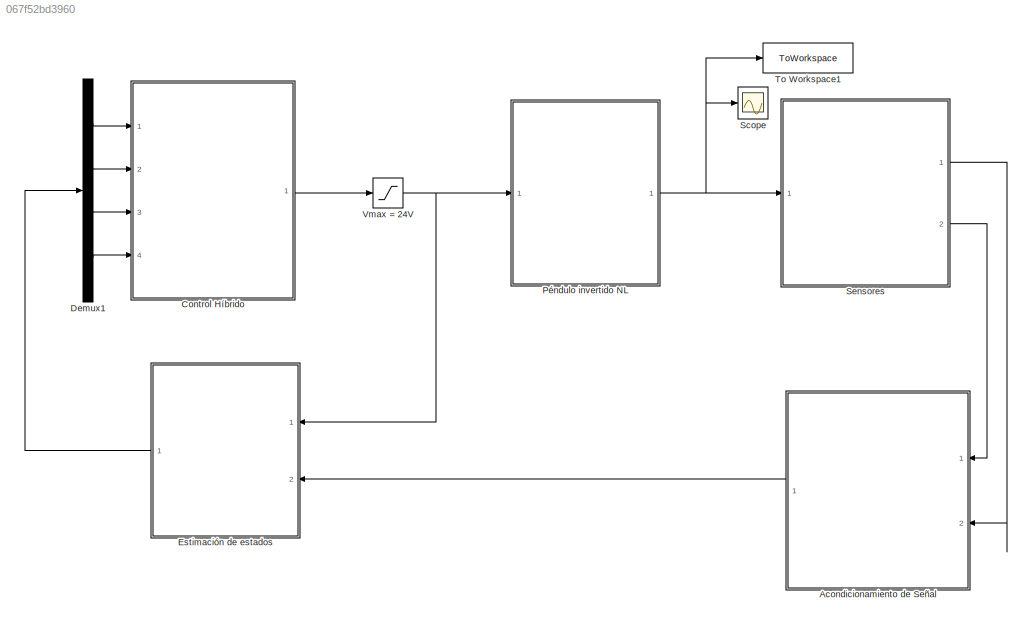
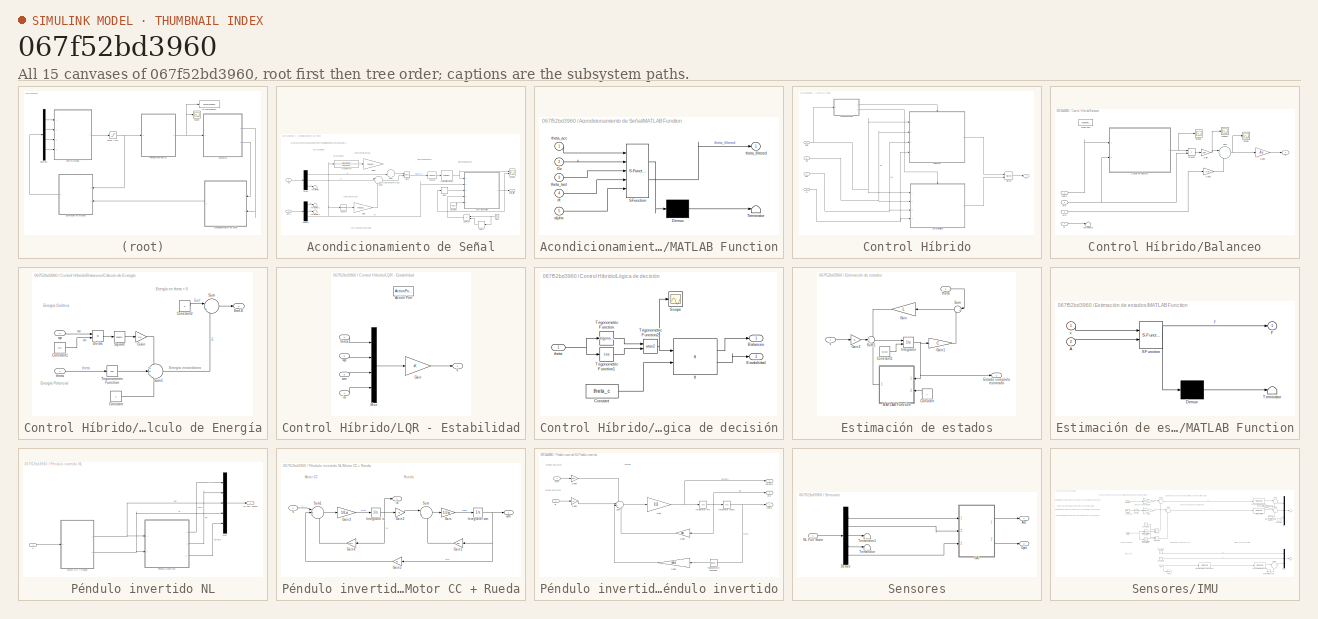
[diagram: thumbnail index - all 15 canvases of the model, root first then tree order]
MODEL slx_067f52bd3960
KIND model
CONFIG AbsTol = auto
CONFIG EnableMultiTasking = off
CONFIG FixedStep = auto
CONFIG MaxStep = auto
CONFIG MinStep = auto
CONFIG RelTol = 1e-3
CONFIG SampleTimeConstraint = Unconstrained
CONFIG SolverName = VariableStepAuto
CONFIG StartTime = 0.0
CONFIG StopTime = 10.0
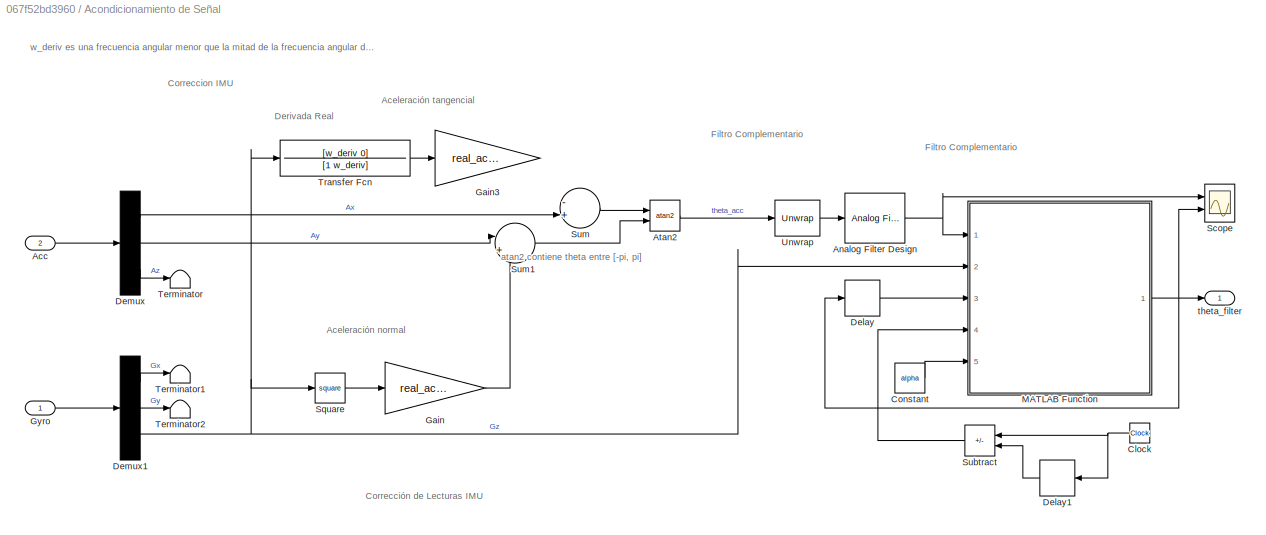
BLOCK [SubSystem] Acondicionamiento de Señal
  Ports = [2, 1]
  RequestExecContextInheritance = off
BLOCK [Inport] Acondicionamiento de Señal/Acc
  Port = 2
BLOCK [Reference] Acondicionamiento de Señal/Analog Filter Design  REF=dsparch4/Analog
Filter Design
  Ports = [1, 1]
  SourceBlock = dsparch4/Analog\nFilter Design
  SourceProductBaseCode = DS
  SourceType = Analog Filter Design
BLOCK [Trigonometry] Acondicionamiento de Señal/Atan2
  Operator = atan2
  Ports = [2, 1]
BLOCK [Clock] Acondicionamiento de Señal/Clock
BLOCK [Constant] Acondicionamiento de Señal/Constant
  Value = alpha
BLOCK [Delay] Acondicionamiento de Señal/Delay
  DelayLength = 1
  InitialCondition = x0_sw(1)
  InputPortMap = u0
  NameLocation = top
  Ports = [1, 1]
  SampleTime = 1/fs_IMU
BLOCK [Delay] Acondicionamiento de Señal/Delay1
  DelayLength = 1
  InitialCondition = 0
  InputPortMap = u0
  NameLocation = top
  Ports = [1, 1]
  SampleTime = 1/fs_IMU
BLOCK [Demux] Acondicionamiento de Señal/Demux
  Outputs = 3
  Ports = [1, 3]
BLOCK [Demux] Acondicionamiento de Señal/Demux1
  Outputs = 3
  Ports = [1, 3]
BLOCK [Gain] Acondicionamiento de Señal/Gain
  Gain = real_acc_height
BLOCK [Gain] Acondicionamiento de Señal/Gain3
  Gain = real_acc_height
BLOCK [Inport] Acondicionamiento de Señal/Gyro
BLOCK [SubSystem] Acondicionamiento de Señal/MATLAB Function
  ErrorFcn = Stateflow.Translate.translate
  PermitHierarchicalResolution = ExplicitOnly
  Ports = [5, 1]
  RequestExecContextInheritance = off
  SFBlockType = MATLAB Function
  TreatAsAtomicUnit = on
BLOCK [Demux] Acondicionamiento de Señal/MATLAB Function/ Demux 
  Outputs = 1
  Ports = [1, 1]
BLOCK [S-Function] Acondicionamiento de Señal/MATLAB Function/ SFunction 
  EnableBusSupport = on
  FunctionName = sf_sfun
  PortCounts = [5 2]
  Ports = [5, 2]
  SFcnIsStateOwnerBlock = off
  SFunctionDeploymentMode = off
  Tag = Stateflow S-Function 2
BLOCK [Terminator] Acondicionamiento de Señal/MATLAB Function/ Terminator 
BLOCK [Inport] Acondicionamiento de Señal/MATLAB Function/Gz
  Port = 2
BLOCK [Inport] Acondicionamiento de Señal/MATLAB Function/alpha
  Port = 5
BLOCK [Inport] Acondicionamiento de Señal/MATLAB Function/dt
  Port = 4
BLOCK [Inport] Acondicionamiento de Señal/MATLAB Function/theta_acc
BLOCK [Outport] Acondicionamiento de Señal/MATLAB Function/theta_filtered
BLOCK [Inport] Acondicionamiento de Señal/MATLAB Function/theta_last
  Port = 3
BLOCK [Scope] Acondicionamiento de Señal/Scope
  Floating = off
  NumInputPorts = 2
  Ports = [2]
  ScopeSpecificationString = Simulink.scopes.TimeScopeBlockCfg('CurrentConfiguration', extmgr.ConfigurationSet(extmgr.Configuration('Core','General UI',true),extmgr.Configuration('Core','Source UI',true),extmgr.Configuration('Sources','WiredSimulink',true,'DataLoggingVariableName','ScopeData1'),extmgr.Configuration('Visuals','Time Domain',true,'SerializedDisplays',{struct('MinYLimReal','-0.30446','MaxYLimReal','0.38542','YLab...<+1520ch>
BLOCK [Math] Acondicionamiento de Señal/Square
  Operator = square
  Ports = [1, 1]
BLOCK [Sum] Acondicionamiento de Señal/Subtract
  IconShape = rectangular
  Inputs = +-
  Ports = [2, 1]
BLOCK [Sum] Acondicionamiento de Señal/Sum
  Inputs = -+|
  Ports = [2, 1]
BLOCK [Sum] Acondicionamiento de Señal/Sum1
  Inputs = |+-
  Ports = [2, 1]
BLOCK [Terminator] Acondicionamiento de Señal/Terminator
BLOCK [Terminator] Acondicionamiento de Señal/Terminator1
BLOCK [Terminator] Acondicionamiento de Señal/Terminator2
BLOCK [TransferFcn] Acondicionamiento de Señal/Transfer Fcn
  Denominator = [1 w_deriv]
  Numerator = [w_deriv 0]
BLOCK [Reference] Acondicionamiento de Señal/Unwrap  REF=dspsigops/Unwrap
  Ports = [1, 1]
  SourceBlock = dspsigops/Unwrap
  SourceProductBaseCode = DS
  SourceType = Unwrap
  UserDataPersistent = on
BLOCK [Outport] Acondicionamiento de Señal/theta_filter
BLOCK [SubSystem] Control Híbrido
  Ports = [4, 1]
  RequestExecContextInheritance = off
BLOCK [SubSystem] Control Híbrido/Balanceo
  Ports = [4, 1, 0, 0, 0, 0, 0, 1]
  RequestExecContextInheritance = off
BLOCK [ActionPort] Control Híbrido/Balanceo/Action Port
  ActionPortLabel = if(u1 > u2 | u1 < -u2)
BLOCK [SubSystem] Control Híbrido/Balanceo/Cálculo de Energía
  Ports = [2, 1]
  RequestExecContextInheritance = off
BLOCK [Constant] Control Híbrido/Balanceo/Cálculo de Energía/Constant
BLOCK [Constant] Control Híbrido/Balanceo/Cálculo de Energía/Constant1
  Value = wn
BLOCK [Constant] Control Híbrido/Balanceo/Cálculo de Energía/Constant2
  Value = 2
BLOCK [Product] Control Híbrido/Balanceo/Cálculo de Energía/Divide
  Inputs = */
  Ports = [2, 1]
BLOCK [Outport] Control Híbrido/Balanceo/Cálculo de Energía/Eref-E
BLOCK [Gain] Control Híbrido/Balanceo/Cálculo de Energía/Gain
  Gain = 1/2
BLOCK [Math] Control Híbrido/Balanceo/Cálculo de Energía/Square
  Operator = square
  Ports = [1, 1]
BLOCK [Sum] Control Híbrido/Balanceo/Cálculo de Energía/Sum
  Inputs = |+-
  Ports = [2, 1]
BLOCK [Sum] Control Híbrido/Balanceo/Cálculo de Energía/Sum1
  Inputs = +++
  Ports = [3, 1]
BLOCK [Trigonometry] Control Híbrido/Balanceo/Cálculo de Energía/Trigonometric Function
  Operator = cos
  Ports = [1, 1]
BLOCK [Inport] Control Híbrido/Balanceo/Cálculo de Energía/theta
BLOCK [Inport] Control Híbrido/Balanceo/Cálculo de Energía/wp
  Port = 2
BLOCK [Gain] Control Híbrido/Balanceo/Gain
  Gain = Ken
BLOCK [Gain] Control Híbrido/Balanceo/Gain1
  Gain = Kw
BLOCK [Gain] Control Híbrido/Balanceo/Gain2
  Gain = -Ku
BLOCK [Product] Control Híbrido/Balanceo/Product
  Ports = [2, 1]
BLOCK [Scope] Control Híbrido/Balanceo/Scope
  Floating = off
  NumInputPorts = 1
  Ports = [1]
  ScopeSpecificationString = Simulink.scopes.TimeScopeBlockCfg('CurrentConfiguration', extmgr.ConfigurationSet(extmgr.Configuration('Core','General UI',true),extmgr.Configuration('Core','Source UI',true),extmgr.Configuration('Sources','WiredSimulink',true,'DataLoggingVariableName','ScopeData3'),extmgr.Configuration('Visuals','Time Domain',true,'SerializedDisplays',{struct('MinYLimReal','-26136.41718','MaxYLimReal','28492.8651...<+1465ch>
BLOCK [Scope] Control Híbrido/Balanceo/Scope1
  Floating = off
  NumInputPorts = 1
  Ports = [1]
  ScopeSpecificationString = Simulink.scopes.TimeScopeBlockCfg('CurrentConfiguration', extmgr.ConfigurationSet(extmgr.Configuration('Core','General UI',true),extmgr.Configuration('Core','Source UI',true),extmgr.Configuration('Sources','WiredSimulink',true,'DataLoggingVariableName','ScopeData1'),extmgr.Configuration('Visuals','Time Domain',true,'SerializedDisplays',{struct('MinYLimReal','-0.42984','MaxYLimReal','2.26998','YLab...<+1377ch>
BLOCK [Scope] Control Híbrido/Balanceo/Scope2
  Floating = off
  NumInputPorts = 1
  Ports = [1]
  ScopeSpecificationString = Simulink.scopes.TimeScopeBlockCfg('CurrentConfiguration', extmgr.ConfigurationSet(extmgr.Configuration('Core','General UI',true),extmgr.Configuration('Core','Source UI',true),extmgr.Configuration('Sources','WiredSimulink',true,'DataLoggingVariableName','ScopeData2'),extmgr.Configuration('Visuals','Time Domain',true,'SerializedDisplays',{struct('MinYLimReal','-4908.47601','MaxYLimReal','5579.96133'...<+1439ch>
BLOCK [Sum] Control Híbrido/Balanceo/Sum
  Inputs = |+-
  Ports = [2, 1]
BLOCK [Terminator] Control Híbrido/Balanceo/Terminator
BLOCK [Outport] Control Híbrido/Balanceo/V
BLOCK [Inport] Control Híbrido/Balanceo/ia
  OutDataTypeStr = double
  Port = 4
  PortDimensions = 1
  SignalType = real
  VarSizeSig = No
BLOCK [Inport] Control Híbrido/Balanceo/theta
  OutDataTypeStr = double
  PortDimensions = 1
  SignalType = real
  VarSizeSig = No
BLOCK [Inport] Control Híbrido/Balanceo/wm
  OutDataTypeStr = double
  Port = 3
  PortDimensions = 1
  SignalType = real
  VarSizeSig = No
BLOCK [Inport] Control Híbrido/Balanceo/wp
  OutDataTypeStr = double
  Port = 2
  PortDimensions = 1
  SignalType = real
  VarSizeSig = No
BLOCK [SubSystem] Control Híbrido/LQR - Estabilidad
  Ports = [4, 1, 0, 0, 0, 0, 0, 1]
  RequestExecContextInheritance = off
BLOCK [ActionPort] Control Híbrido/LQR - Estabilidad/Action Port
  ActionPortLabel = else
BLOCK [Gain] Control Híbrido/LQR - Estabilidad/Gain
  Gain = -K
  Multiplication = Matrix(K*u)
BLOCK [Mux] Control Híbrido/LQR - Estabilidad/Mux
  DisplayOption = bar
  Ports = [4, 1]
BLOCK [Outport] Control Híbrido/LQR - Estabilidad/V
BLOCK [Inport] Control Híbrido/LQR - Estabilidad/ia
  Port = 4
BLOCK [Inport] Control Híbrido/LQR - Estabilidad/theta
BLOCK [Inport] Control Híbrido/LQR - Estabilidad/wm
  Port = 3
BLOCK [Inport] Control Híbrido/LQR - Estabilidad/wp
  Port = 2
BLOCK [SubSystem] Control Híbrido/Lógica de decisión
  Ports = [1, 2]
  RequestExecContextInheritance = off
BLOCK [Outport] Control Híbrido/Lógica de decisión/Balanceo
BLOCK [Constant] Control Híbrido/Lógica de decisión/Constant
  Value = theta_c
BLOCK [Outport] Control Híbrido/Lógica de decisión/Estabilidad
  Port = 2
BLOCK [If] Control Híbrido/Lógica de decisión/If
  IfExpression = u1 > u2 | u1 < -u2
  NumInputs = 2
  Ports = [2, 2]
BLOCK [Scope] Control Híbrido/Lógica de decisión/Scope
  Floating = off
  NumInputPorts = 1
  Ports = [1]
  ScopeSpecificationString = Simulink.scopes.TimeScopeBlockCfg('CurrentConfiguration', extmgr.ConfigurationSet(extmgr.Configuration('Core','General UI',true),extmgr.Configuration('Core','Source UI',true),extmgr.Configuration('Sources','WiredSimulink',true,'DataLoggingVariableName','ScopeData1'),extmgr.Configuration('Visuals','Time Domain',true,'SerializedDisplays',{struct('MinYLimReal','-3.92551','MaxYLimReal','3.92683','YLab...<+1426ch>
BLOCK [Trigonometry] Control Híbrido/Lógica de decisión/Trigonometric Function
  Ports = [1, 1]
BLOCK [Trigonometry] Control Híbrido/Lógica de decisión/Trigonometric Function1
  Operator = cos
  Ports = [1, 1]
BLOCK [Trigonometry] Control Híbrido/Lógica de decisión/Trigonometric Function2
  Operator = atan2
  Ports = [2, 1]
BLOCK [Inport] Control Híbrido/Lógica de decisión/theta
BLOCK [Merge] Control Híbrido/Merge
  Ports = [2, 1]
BLOCK [Outport] Control Híbrido/V
BLOCK [Inport] Control Híbrido/ia
  OutDataTypeStr = double
  Port = 4
  PortDimensions = 1
  SignalType = real
  VarSizeSig = No
BLOCK [Inport] Control Híbrido/theta
  OutDataTypeStr = double
  PortDimensions = 1
  SignalType = real
  VarSizeSig = No
BLOCK [Inport] Control Híbrido/wm
  OutDataTypeStr = double
  Port = 3
  PortDimensions = 1
  SignalType = real
  VarSizeSig = No
BLOCK [Inport] Control Híbrido/wp
  OutDataTypeStr = double
  Port = 2
  PortDimensions = 1
  SignalType = real
  VarSizeSig = No
BLOCK [Demux] Demux1
  Ports = [1, 4]
BLOCK [SubSystem] Estimación de estados
  Ports = [2, 1]
  RequestExecContextInheritance = off
BLOCK [Constant] Estimación de estados/Constant
  Value = A
BLOCK [Constant] Estimación de estados/Constant1
  Value = x0_sw
BLOCK [Outport] Estimación de estados/Estado completo estimado
BLOCK [Gain] Estimación de estados/Gain
  Gain = L
  Multiplication = Matrix(K*u)
BLOCK [Gain] Estimación de estados/Gain1
  Gain = C
  Multiplication = Matrix(K*u)
BLOCK [Gain] Estimación de estados/Gain3
  Gain = B
  Multiplication = Matrix(K*u)
BLOCK [Integrator] Estimación de estados/Integrator
  InitialCondition = x0
  InitialConditionSource = external
  Ports = [2, 1]
BLOCK [SubSystem] Estimación de estados/MATLAB Function
  ErrorFcn = Stateflow.Translate.translate
  PermitHierarchicalResolution = ExplicitOnly
  Ports = [2, 1]
  RequestExecContextInheritance = off
  SFBlockType = MATLAB Function
  TreatAsAtomicUnit = on
BLOCK [Demux] Estimación de estados/MATLAB Function/ Demux 
  Outputs = 1
  Ports = [1, 1]
BLOCK [S-Function] Estimación de estados/MATLAB Function/ SFunction 
  EnableBusSupport = on
  FunctionName = sf_sfun
  PortCounts = [2 2]
  Ports = [2, 2]
  SFcnIsStateOwnerBlock = off
  SFunctionDeploymentMode = off
  Tag = Stateflow S-Function 1
BLOCK [Terminator] Estimación de estados/MATLAB Function/ Terminator 
BLOCK [Inport] Estimación de estados/MATLAB Function/A
  Port = 2
BLOCK [Outport] Estimación de estados/MATLAB Function/F
BLOCK [Inport] Estimación de estados/MATLAB Function/x
BLOCK [Sum] Estimación de estados/Sum
  Inputs = |+-
  Ports = [2, 1]
BLOCK [Sum] Estimación de estados/Sum1
  Inputs = +++
  Ports = [3, 1]
BLOCK [Inport] Estimación de estados/V
BLOCK [Inport] Estimación de estados/theta
  Port = 2
BLOCK [SubSystem] Péndulo invertido NL
  Ports = [1, 1]
  RequestExecContextInheritance = off
BLOCK [SubSystem] Péndulo invertido NL/Motor CC + Rueda
  Ports = [1, 2]
  RequestExecContextInheritance = off
BLOCK [Gain] Péndulo invertido NL/Motor CC + Rueda/Gain
  Gain = 1/Jw
BLOCK [Gain] Péndulo invertido NL/Motor CC + Rueda/Gain1
  Gain = bm
BLOCK [Gain] Péndulo invertido NL/Motor CC + Rueda/Gain2
  Gain = Kt
BLOCK [Gain] Péndulo invertido NL/Motor CC + Rueda/Gain3
  Gain = 1/La
BLOCK [Gain] Péndulo invertido NL/Motor CC + Rueda/Gain4
  Gain = Ra
BLOCK [Gain] Péndulo invertido NL/Motor CC + Rueda/Gain5
  Gain = Ke
BLOCK [Integrator] Péndulo invertido NL/Motor CC + Rueda/Integrator ia
  InitialCondition = x0_sw(4)
  Ports = [1, 1]
BLOCK [Integrator] Péndulo invertido NL/Motor CC + Rueda/Integrator wm
  InitialCondition = x0_sw(3)
  Ports = [1, 1]
BLOCK [Sum] Péndulo invertido NL/Motor CC + Rueda/Sum
  Inputs = |+-
  Ports = [2, 1]
BLOCK [Sum] Péndulo invertido NL/Motor CC + Rueda/Sum1
  Inputs = |+--
  Ports = [3, 1]
BLOCK [Inport] Péndulo invertido NL/Motor CC + Rueda/V
BLOCK [Outport] Péndulo invertido NL/Motor CC + Rueda/ia
  Port = 2
BLOCK [Outport] Péndulo invertido NL/Motor CC + Rueda/wm
BLOCK [Mux] Péndulo invertido NL/Mux
  DisplayOption = bar
  Inputs = 5
  Ports = [5, 1]
BLOCK [Outport] Péndulo invertido NL/NL Full State
BLOCK [SubSystem] Péndulo invertido NL/Péndulo invertido
  Ports = [2, 3]
  RequestExecContextInheritance = off
BLOCK [Gain] Péndulo invertido NL/Péndulo invertido/Gain
  Gain = 1/J1
BLOCK [Gain] Péndulo invertido NL/Péndulo invertido/Gain1
  Gain = beta
BLOCK [Gain] Péndulo invertido NL/Péndulo invertido/Gain2
  Gain = Kt
BLOCK [Gain] Péndulo invertido NL/Péndulo invertido/Gain3
  Gain = bp
BLOCK [Gain] Péndulo invertido NL/Péndulo invertido/Gain4
  Gain = bm
BLOCK [Integrator] Péndulo invertido NL/Péndulo invertido/Integrator Theta
  InitialCondition = x0_sw(1)
  Ports = [1, 1]
  WrappedStateLowerValue = 0
  WrappedStateUpperValue = 2*pi
BLOCK [Integrator] Péndulo invertido NL/Péndulo invertido/Integrator wp
  InitialCondition = x0_sw(2)
  Ports = [1, 1]
BLOCK [Sum] Péndulo invertido NL/Péndulo invertido/Sum
  Inputs = +-+-
  Ports = [4, 1]
BLOCK [Trigonometry] Péndulo invertido NL/Péndulo invertido/Trigonometric Function1
  Ports = [1, 1]
BLOCK [Outport] Péndulo invertido NL/Péndulo invertido/d2theta
  Port = 3
BLOCK [Inport] Péndulo invertido NL/Péndulo invertido/ia
  Port = 2
BLOCK [Outport] Péndulo invertido NL/Péndulo invertido/theta
BLOCK [Inport] Péndulo invertido NL/Péndulo invertido/wm
BLOCK [Outport] Péndulo invertido NL/Péndulo invertido/wp
  Port = 2
BLOCK [Inport] Péndulo invertido NL/V
BLOCK [Scope] Scope
  Floating = off
  NumInputPorts = 1
  Ports = [1]
  ScopeSpecificationString = Simulink.scopes.TimeScopeBlockCfg('CurrentConfiguration', extmgr.ConfigurationSet(extmgr.Configuration('Core','General UI',true),extmgr.Configuration('Core','Source UI',true),extmgr.Configuration('Sources','WiredSimulink',true,'DataLoggingVariableName','ScopeData1'),extmgr.Configuration('Visuals','Time Domain',true),extmgr.Configuration('Tools','Plot Navigation',true),extmgr.Configuration('Tools',...<+40ch>
BLOCK [SubSystem] Sensores
  Ports = [1, 2]
  RequestExecContextInheritance = off
BLOCK [Outport] Sensores/Acc
BLOCK [Demux] Sensores/Demux
  Outputs = 5
  Ports = [1, 5]
BLOCK [Outport] Sensores/Gyro
  Port = 2
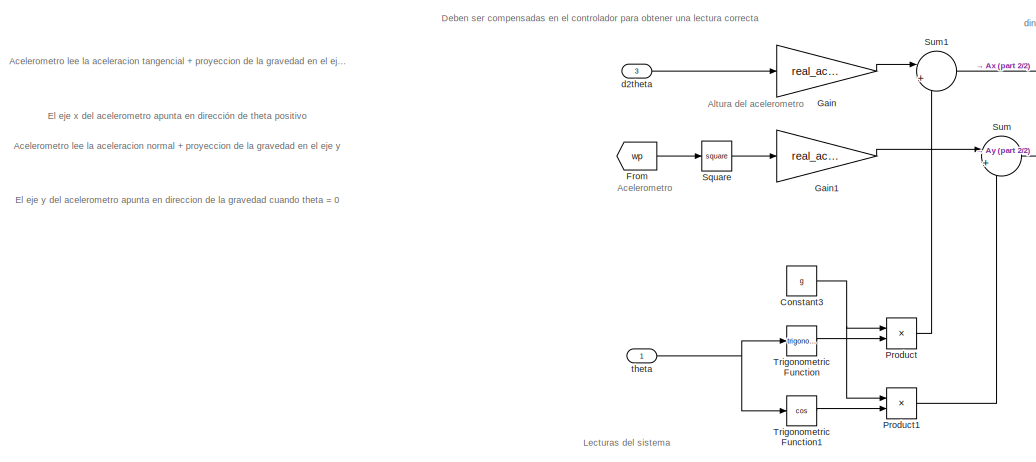
[diagram: Sensores/IMU - part 1/2, top left region]
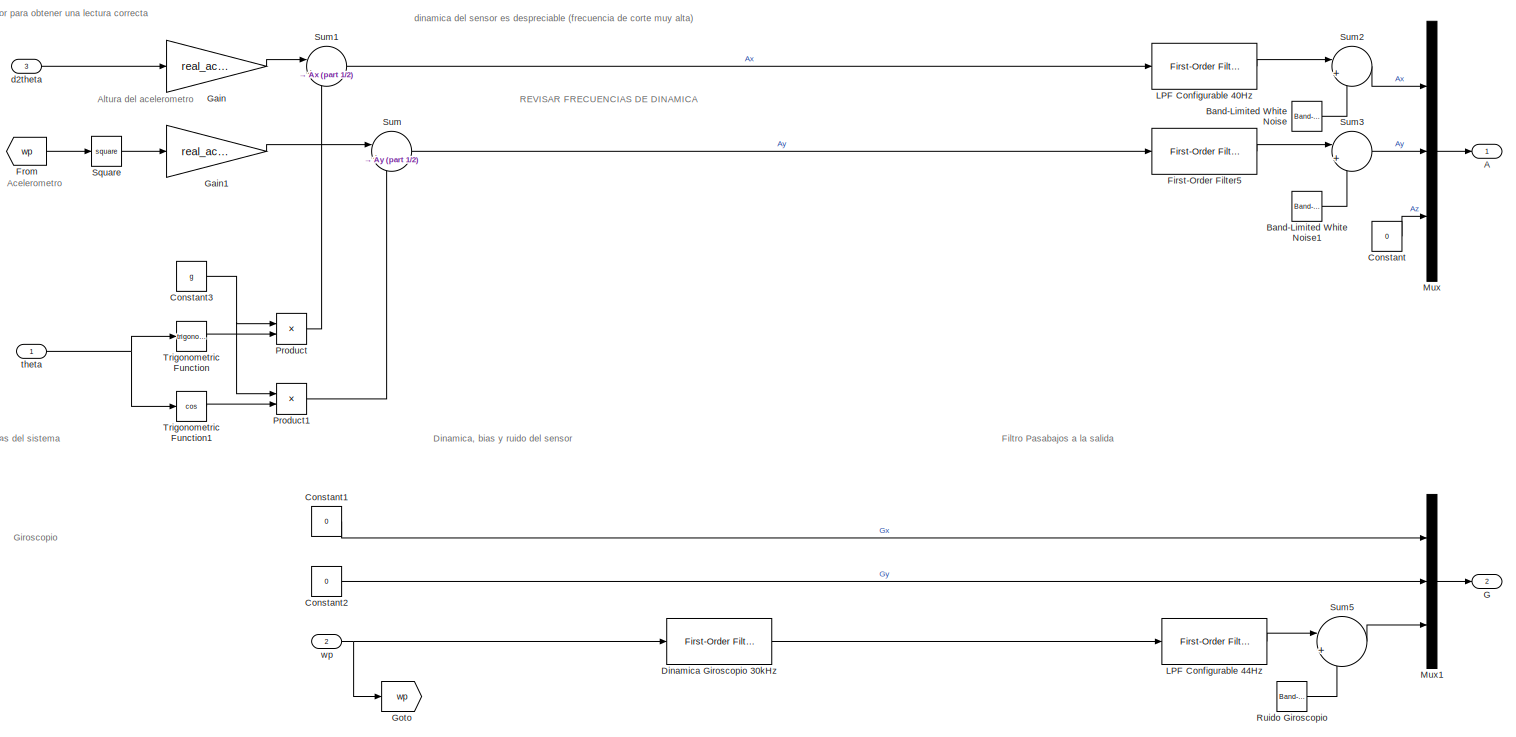
[diagram: Sensores/IMU - part 2/2, center side, full height]
BLOCK [SubSystem] Sensores/IMU
  Ports = [3, 2]
  RequestExecContextInheritance = off
BLOCK [Outport] Sensores/IMU/A
BLOCK [Reference] Sensores/IMU/Band-Limited White Noise  REF=simulink/Sources/Band-Limited
White Noise
  Ports = [0, 1]
  SourceBlock = simulink/Sources/Band-Limited\nWhite Noise
  SourceProductBaseCode = SL
  SourceType = Band-Limited White Noise.
BLOCK [Reference] Sensores/IMU/Band-Limited White Noise1  REF=simulink/Sources/Band-Limited
White Noise
  Ports = [0, 1]
  SourceBlock = simulink/Sources/Band-Limited\nWhite Noise
  SourceProductBaseCode = SL
  SourceType = Band-Limited White Noise.
BLOCK [Constant] Sensores/IMU/Constant
  Value = 0
BLOCK [Constant] Sensores/IMU/Constant1
  Value = 0
BLOCK [Constant] Sensores/IMU/Constant2
  Value = 0
BLOCK [Constant] Sensores/IMU/Constant3
  Value = g
BLOCK [Reference] Sensores/IMU/Dinamica Giroscopio 30kHz  REF=spsFirstOrderFilterLib/First-Order
Filter
  Ports = [1, 1]
  SourceBlock = spsFirstOrderFilterLib/First-Order\nFilter
  SourceProductBaseCode = PS
  SourceType = First-Order Filter
BLOCK [Reference] Sensores/IMU/First-Order Filter5  REF=spsFirstOrderFilterLib/First-Order
Filter
  Ports = [1, 1]
  SourceBlock = spsFirstOrderFilterLib/First-Order\nFilter
  SourceProductBaseCode = PS
  SourceType = First-Order Filter
BLOCK [From] Sensores/IMU/From
  GotoTag = wp
BLOCK [Outport] Sensores/IMU/G
  Port = 2
BLOCK [Gain] Sensores/IMU/Gain
  Gain = real_acc_height
BLOCK [Gain] Sensores/IMU/Gain1
  Gain = real_acc_height
BLOCK [Goto] Sensores/IMU/Goto
  GotoTag = wp
BLOCK [Reference] Sensores/IMU/LPF Configurable 40Hz  REF=spsFirstOrderFilterLib/First-Order
Filter
  Ports = [1, 1]
  SourceBlock = spsFirstOrderFilterLib/First-Order\nFilter
  SourceProductBaseCode = PS
  SourceType = First-Order Filter
BLOCK [Reference] Sensores/IMU/LPF Configurable 44Hz  REF=spsFirstOrderFilterLib/First-Order
Filter
  Ports = [1, 1]
  SourceBlock = spsFirstOrderFilterLib/First-Order\nFilter
  SourceProductBaseCode = PS
  SourceType = First-Order Filter
BLOCK [Mux] Sensores/IMU/Mux
  DisplayOption = bar
  Inputs = 3
  Ports = [3, 1]
BLOCK [Mux] Sensores/IMU/Mux1
  DisplayOption = bar
  Inputs = 3
  Ports = [3, 1]
BLOCK [Product] Sensores/IMU/Product
  Ports = [2, 1]
BLOCK [Product] Sensores/IMU/Product1
  Ports = [2, 1]
BLOCK [Reference] Sensores/IMU/Ruido Giroscopio  REF=simulink/Sources/Band-Limited
White Noise
  Ports = [0, 1]
  SourceBlock = simulink/Sources/Band-Limited\nWhite Noise
  SourceProductBaseCode = SL
  SourceType = Band-Limited White Noise.
BLOCK [Math] Sensores/IMU/Square
  Operator = square
  Ports = [1, 1]
BLOCK [Sum] Sensores/IMU/Sum
  Inputs = |++
  Ports = [2, 1]
BLOCK [Sum] Sensores/IMU/Sum1
  Inputs = |++
  Ports = [2, 1]
BLOCK [Sum] Sensores/IMU/Sum2
  Inputs = |++
  Ports = [2, 1]
BLOCK [Sum] Sensores/IMU/Sum3
  Inputs = |++
  Ports = [2, 1]
BLOCK [Sum] Sensores/IMU/Sum5
  Inputs = |++
  Ports = [2, 1]
BLOCK [Trigonometry] Sensores/IMU/Trigonometric Function
  Ports = [1, 1]
BLOCK [Trigonometry] Sensores/IMU/Trigonometric Function1
  Operator = cos
  Ports = [1, 1]
BLOCK [Inport] Sensores/IMU/d2theta
  Port = 3
BLOCK [Inport] Sensores/IMU/theta
BLOCK [Inport] Sensores/IMU/wp
  Port = 2
BLOCK [Inport] Sensores/NL Full State
BLOCK [Terminator] Sensores/Terminator
BLOCK [Terminator] Sensores/Terminator1
BLOCK [ToWorkspace] To Workspace1
  FixptAsFi = on
  MaxDataPoints = inf
  Ports = [1]
  SampleTime = -1
  SaveFormat = Structure With Time
  VariableName = animation
BLOCK [Saturate] Vmax = 24V
  LowerLimit = -V_nom
  UpperLimit = V_nom
ANNOTATION Acondicionamiento de Señal: w_deriv es una frecuencia angular menor que la mitad de la frecuencia angular del conversor A/D
ANNOTATION Acondicionamiento de Señal: Corrección de Lecturas IMU
ANNOTATION Acondicionamiento de Señal: Filtro Complementario
ANNOTATION Acondicionamiento de Señal: Aceleración normal
ANNOTATION Acondicionamiento de Señal: Aceleración tangencial
ANNOTATION Acondicionamiento de Señal: Correccion IMU
ANNOTATION Acondicionamiento de Señal: Derivada Real
ANNOTATION Acondicionamiento de Señal: atan2 contiene theta entre [-pi, pi]
ANNOTATION Control Híbrido/Balanceo/Cálculo de Energía: Energía Cinética
ANNOTATION Control Híbrido/Balanceo/Cálculo de Energía: Energía Potencial
ANNOTATION Control Híbrido/Balanceo/Cálculo de Energía: Energía en theta = 0
ANNOTATION Control Híbrido/Balanceo/Cálculo de Energía: Energía instantánea
ANNOTATION Péndulo invertido NL/Motor CC + Rueda: Motor CC
ANNOTATION Péndulo invertido NL/Motor CC + Rueda: Rueda
ANNOTATION Péndulo invertido NL/Péndulo invertido: Fricción del motor
ANNOTATION Péndulo invertido NL/Péndulo invertido: Torque del motor
ANNOTATION Péndulo invertido NL/Péndulo invertido: Péndulo
ANNOTATION Sensores/IMU: Acelerometro lee la aceleracion normal + proyeccion de la gravedad en el eje y
ANNOTATION Sensores/IMU: Acelerometro lee la aceleracion tangencial + proyeccion de la gravedad en el eje x
ANNOTATION Sensores/IMU: Dinamica, bias y ruido del sensor
ANNOTATION Sensores/IMU: Filtro Pasabajos a la salida
ANNOTATION Sensores/IMU: Lecturas del sistema
ANNOTATION Sensores/IMU: Acelerometro
ANNOTATION Sensores/IMU: Giroscopio
ANNOTATION Sensores/IMU: Altura del acelerometro
ANNOTATION Sensores/IMU: Deben ser compensadas en el controlador para obtener una lectura correcta
ANNOTATION Sensores/IMU: El eje x del acelerometro apunta en dirección de theta positivo
ANNOTATION Sensores/IMU: El eje y del acelerometro apunta en direccion de la gravedad cuando theta = 0
ANNOTATION Sensores/IMU: REVISAR FRECUENCIAS DE DINAMICA
ANNOTATION Sensores/IMU: dinamica del sensor es despreciable (frecuencia de corte muy alta)
LINE Acondicionamiento de Señal/Acc:1 -> Acondicionamiento de Señal/Demux:1
NET Acondicionamiento de Señal/Analog Filter Design:1 -> Acondicionamiento de Señal/MATLAB Function:1, Acondicionamiento de Señal/Scope:1
LINE Acondicionamiento de Señal/Atan2:1 -> Acondicionamiento de Señal/Unwrap:1
NET Acondicionamiento de Señal/Clock:1 -> Acondicionamiento de Señal/Delay1:1, Acondicionamiento de Señal/Subtract:1
LINE Acondicionamiento de Señal/Constant:1 -> Acondicionamiento de Señal/MATLAB Function:5
LINE Acondicionamiento de Señal/Delay1:1 -> Acondicionamiento de Señal/Subtract:2
LINE Acondicionamiento de Señal/Delay:1 -> Acondicionamiento de Señal/MATLAB Function:3
LINE Acondicionamiento de Señal/Demux1:1 -> Acondicionamiento de Señal/Terminator1:1
LINE Acondicionamiento de Señal/Demux1:2 -> Acondicionamiento de Señal/Terminator2:1
NET Acondicionamiento de Señal/Demux1:3 -> Acondicionamiento de Señal/MATLAB Function:2, Acondicionamiento de Señal/Square:1, Acondicionamiento de Señal/Transfer Fcn:1
LINE Acondicionamiento de Señal/Demux:1 -> Acondicionamiento de Señal/Sum:2
LINE Acondicionamiento de Señal/Demux:2 -> Acondicionamiento de Señal/Sum1:1
LINE Acondicionamiento de Señal/Demux:3 -> Acondicionamiento de Señal/Terminator:1
LINE Acondicionamiento de Señal/Gain:1 -> Acondicionamiento de Señal/Sum1:2
LINE Acondicionamiento de Señal/Gyro:1 -> Acondicionamiento de Señal/Demux1:1
NET Acondicionamiento de Señal/MATLAB Function:1 -> Acondicionamiento de Señal/Delay:1, Acondicionamiento de Señal/Scope:2, Acondicionamiento de Señal/theta_filter:1
LINE Acondicionamiento de Señal/Square:1 -> Acondicionamiento de Señal/Gain:1
LINE Acondicionamiento de Señal/Subtract:1 -> Acondicionamiento de Señal/MATLAB Function:4
LINE Acondicionamiento de Señal/Sum1:1 -> Acondicionamiento de Señal/Atan2:2
LINE Acondicionamiento de Señal/Sum:1 -> Acondicionamiento de Señal/Atan2:1
LINE Acondicionamiento de Señal/Transfer Fcn:1 -> Acondicionamiento de Señal/Gain3:1
LINE Acondicionamiento de Señal/Unwrap:1 -> Acondicionamiento de Señal/Analog Filter Design:1
LINE Acondicionamiento de Señal:1 -> Estimación de estados:2
LINE Control Híbrido/Balanceo/Cálculo de Energía/Constant1:1 -> Control Híbrido/Balanceo/Cálculo de Energía/Divide:2
LINE Control Híbrido/Balanceo/Cálculo de Energía/Constant2:1 -> Control Híbrido/Balanceo/Cálculo de Energía/Sum:1
LINE Control Híbrido/Balanceo/Cálculo de Energía/Constant:1 -> Control Híbrido/Balanceo/Cálculo de Energía/Sum1:3
LINE Control Híbrido/Balanceo/Cálculo de Energía/Divide:1 -> Control Híbrido/Balanceo/Cálculo de Energía/Square:1
LINE Control Híbrido/Balanceo/Cálculo de Energía/Gain:1 -> Control Híbrido/Balanceo/Cálculo de Energía/Sum1:1
LINE Control Híbrido/Balanceo/Cálculo de Energía/Square:1 -> Control Híbrido/Balanceo/Cálculo de Energía/Gain:1
LINE Control Híbrido/Balanceo/Cálculo de Energía/Sum1:1 -> Control Híbrido/Balanceo/Cálculo de Energía/Sum:2
LINE Control Híbrido/Balanceo/Cálculo de Energía/Sum:1 -> Control Híbrido/Balanceo/Cálculo de Energía/Eref-E:1
LINE Control Híbrido/Balanceo/Cálculo de Energía/Trigonometric Function:1 -> Control Híbrido/Balanceo/Cálculo de Energía/Sum1:2
LINE Control Híbrido/Balanceo/Cálculo de Energía/theta:1 -> Control Híbrido/Balanceo/Cálculo de Energía/Trigonometric Function:1
LINE Control Híbrido/Balanceo/Cálculo de Energía/wp:1 -> Control Híbrido/Balanceo/Cálculo de Energía/Divide:1
NET Control Híbrido/Balanceo/Cálculo de Energía:1 -> Control Híbrido/Balanceo/Product:1, Control Híbrido/Balanceo/Scope1:1
LINE Control Híbrido/Balanceo/Gain1:1 -> Control Híbrido/Balanceo/Sum:2
LINE Control Híbrido/Balanceo/Gain2:1 -> Control Híbrido/Balanceo/V:1
NET Control Híbrido/Balanceo/Gain:1 -> Control Híbrido/Balanceo/Scope2:1, Control Híbrido/Balanceo/Sum:1
LINE Control Híbrido/Balanceo/Product:1 -> Control Híbrido/Balanceo/Gain:1
NET Control Híbrido/Balanceo/Sum:1 -> Control Híbrido/Balanceo/Gain2:1, Control Híbrido/Balanceo/Scope:1
LINE Control Híbrido/Balanceo/ia:1 -> Control Híbrido/Balanceo/Terminator:1
LINE Control Híbrido/Balanceo/theta:1 -> Control Híbrido/Balanceo/Cálculo de Energía:1
LINE Control Híbrido/Balanceo/wm:1 -> Control Híbrido/Balanceo/Gain1:1
NET Control Híbrido/Balanceo/wp:1 -> Control Híbrido/Balanceo/Cálculo de Energía:2, Control Híbrido/Balanceo/Product:2
LINE Control Híbrido/Balanceo:1 -> Control Híbrido/Merge:1
LINE Control Híbrido/LQR - Estabilidad/Gain:1 -> Control Híbrido/LQR - Estabilidad/V:1
LINE Control Híbrido/LQR - Estabilidad/Mux:1 -> Control Híbrido/LQR - Estabilidad/Gain:1
LINE Control Híbrido/LQR - Estabilidad/ia:1 -> Control Híbrido/LQR - Estabilidad/Mux:4
LINE Control Híbrido/LQR - Estabilidad/theta:1 -> Control Híbrido/LQR - Estabilidad/Mux:1
LINE Control Híbrido/LQR - Estabilidad/wm:1 -> Control Híbrido/LQR - Estabilidad/Mux:3
LINE Control Híbrido/LQR - Estabilidad/wp:1 -> Control Híbrido/LQR - Estabilidad/Mux:2
LINE Control Híbrido/LQR - Estabilidad:1 -> Control Híbrido/Merge:2
LINE Control Híbrido/Lógica de decisión/Constant:1 -> Control Híbrido/Lógica de decisión/If:2
LINE Control Híbrido/Lógica de decisión/If:1 -> Control Híbrido/Lógica de decisión/Balanceo:1
LINE Control Híbrido/Lógica de decisión/If:2 -> Control Híbrido/Lógica de decisión/Estabilidad:1
LINE Control Híbrido/Lógica de decisión/Trigonometric Function1:1 -> Control Híbrido/Lógica de decisión/Trigonometric Function2:2
NET Control Híbrido/Lógica de decisión/Trigonometric Function2:1 -> Control Híbrido/Lógica de decisión/If:1, Control Híbrido/Lógica de decisión/Scope:1
LINE Control Híbrido/Lógica de decisión/Trigonometric Function:1 -> Control Híbrido/Lógica de decisión/Trigonometric Function2:1
NET Control Híbrido/Lógica de decisión/theta:1 -> Control Híbrido/Lógica de decisión/Trigonometric Function1:1, Control Híbrido/Lógica de decisión/Trigonometric Function:1
LINE Control Híbrido/Lógica de decisión:1 -> Control Híbrido/Balanceo:ifaction
LINE Control Híbrido/Lógica de decisión:2 -> Control Híbrido/LQR - Estabilidad:ifaction
LINE Control Híbrido/Merge:1 -> Control Híbrido/V:1
NET Control Híbrido/ia:1 -> Control Híbrido/Balanceo:4, Control Híbrido/LQR - Estabilidad:4
NET Control Híbrido/theta:1 -> Control Híbrido/Balanceo:1, Control Híbrido/LQR - Estabilidad:1, Control Híbrido/Lógica de decisión:1
NET Control Híbrido/wm:1 -> Control Híbrido/Balanceo:3, Control Híbrido/LQR - Estabilidad:3
NET Control Híbrido/wp:1 -> Control Híbrido/Balanceo:2, Control Híbrido/LQR - Estabilidad:2
LINE Control Híbrido:1 -> Vmax = 24V:1
LINE Demux1:1 -> Control Híbrido:1
LINE Demux1:2 -> Control Híbrido:2
LINE Demux1:3 -> Control Híbrido:3
LINE Demux1:4 -> Control Híbrido:4
LINE Estimación de estados/Constant1:1 -> Estimación de estados/Integrator:2
LINE Estimación de estados/Constant:1 -> Estimación de estados/MATLAB Function:2
LINE Estimación de estados/Gain1:1 -> Estimación de estados/Sum:2
LINE Estimación de estados/Gain3:1 -> Estimación de estados/Sum1:2
LINE Estimación de estados/Gain:1 -> Estimación de estados/Sum1:1
NET Estimación de estados/Integrator:1 -> Estimación de estados/Estado completo estimado:1, Estimación de estados/Gain1:1, Estimación de estados/MATLAB Function:1
LINE Estimación de estados/MATLAB Function:1 -> Estimación de estados/Sum1:3
LINE Estimación de estados/Sum1:1 -> Estimación de estados/Integrator:1
LINE Estimación de estados/Sum:1 -> Estimación de estados/Gain:1
LINE Estimación de estados/V:1 -> Estimación de estados/Gain3:1
LINE Estimación de estados/theta:1 -> Estimación de estados/Sum:1
LINE Estimación de estados:1 -> Demux1:1
LINE Péndulo invertido NL/Motor CC + Rueda/Gain1:1 -> Péndulo invertido NL/Motor CC + Rueda/Sum:2
LINE Péndulo invertido NL/Motor CC + Rueda/Gain2:1 -> Péndulo invertido NL/Motor CC + Rueda/Sum:1
LINE Péndulo invertido NL/Motor CC + Rueda/Gain3:1 -> Péndulo invertido NL/Motor CC + Rueda/Integrator ia:1
LINE Péndulo invertido NL/Motor CC + Rueda/Gain4:1 -> Péndulo invertido NL/Motor CC + Rueda/Sum1:3
LINE Péndulo invertido NL/Motor CC + Rueda/Gain5:1 -> Péndulo invertido NL/Motor CC + Rueda/Sum1:2
LINE Péndulo invertido NL/Motor CC + Rueda/Gain:1 -> Péndulo invertido NL/Motor CC + Rueda/Integrator wm:1
NET Péndulo invertido NL/Motor CC + Rueda/Integrator ia:1 -> Péndulo invertido NL/Motor CC + Rueda/Gain2:1, Péndulo invertido NL/Motor CC + Rueda/Gain4:1, Péndulo invertido NL/Motor CC + Rueda/ia:1
NET Péndulo invertido NL/Motor CC + Rueda/Integrator wm:1 -> Péndulo invertido NL/Motor CC + Rueda/Gain1:1, Péndulo invertido NL/Motor CC + Rueda/Gain5:1, Péndulo invertido NL/Motor CC + Rueda/wm:1
LINE Péndulo invertido NL/Motor CC + Rueda/Sum1:1 -> Péndulo invertido NL/Motor CC + Rueda/Gain3:1
LINE Péndulo invertido NL/Motor CC + Rueda/Sum:1 -> Péndulo invertido NL/Motor CC + Rueda/Gain:1
LINE Péndulo invertido NL/Motor CC + Rueda/V:1 -> Péndulo invertido NL/Motor CC + Rueda/Sum1:1
NET Péndulo invertido NL/Motor CC + Rueda:1 -> Péndulo invertido NL/Mux:3, Péndulo invertido NL/Péndulo invertido:1
NET Péndulo invertido NL/Motor CC + Rueda:2 -> Péndulo invertido NL/Mux:4, Péndulo invertido NL/Péndulo invertido:2
LINE Péndulo invertido NL/Mux:1 -> Péndulo invertido NL/NL Full State:1
LINE Péndulo invertido NL/Péndulo invertido/Gain1:1 -> Péndulo invertido NL/Péndulo invertido/Sum:3
LINE Péndulo invertido NL/Péndulo invertido/Gain2:1 -> Péndulo invertido NL/Péndulo invertido/Sum:2
LINE Péndulo invertido NL/Péndulo invertido/Gain3:1 -> Péndulo invertido NL/Péndulo invertido/Sum:4
LINE Péndulo invertido NL/Péndulo invertido/Gain4:1 -> Péndulo invertido NL/Péndulo invertido/Sum:1
NET Péndulo invertido NL/Péndulo invertido/Gain:1 -> Péndulo invertido NL/Péndulo invertido/Integrator wp:1, Péndulo invertido NL/Péndulo invertido/d2theta:1
NET Péndulo invertido NL/Péndulo invertido/Integrator Theta:1 -> Péndulo invertido NL/Péndulo invertido/Trigonometric Function1:1, Péndulo invertido NL/Péndulo invertido/theta:1
NET Péndulo invertido NL/Péndulo invertido/Integrator wp:1 -> Péndulo invertido NL/Péndulo invertido/Gain3:1, Péndulo invertido NL/Péndulo invertido/Integrator Theta:1, Péndulo invertido NL/Péndulo invertido/wp:1
LINE Péndulo invertido NL/Péndulo invertido/Sum:1 -> Péndulo invertido NL/Péndulo invertido/Gain:1
LINE Péndulo invertido NL/Péndulo invertido/Trigonometric Function1:1 -> Péndulo invertido NL/Péndulo invertido/Gain1:1
LINE Péndulo invertido NL/Péndulo invertido/ia:1 -> Péndulo invertido NL/Péndulo invertido/Gain2:1
LINE Péndulo invertido NL/Péndulo invertido/wm:1 -> Péndulo invertido NL/Péndulo invertido/Gain4:1
LINE Péndulo invertido NL/Péndulo invertido:1 -> Péndulo invertido NL/Mux:1
LINE Péndulo invertido NL/Péndulo invertido:2 -> Péndulo invertido NL/Mux:2
LINE Péndulo invertido NL/Péndulo invertido:3 -> Péndulo invertido NL/Mux:5
LINE Péndulo invertido NL/V:1 -> Péndulo invertido NL/Motor CC + Rueda:1
NET Péndulo invertido NL:1 -> Scope:1, Sensores:1, To Workspace1:1
LINE Sensores/Demux:1 -> Sensores/IMU:1
LINE Sensores/Demux:2 -> Sensores/IMU:2
LINE Sensores/Demux:3 -> Sensores/Terminator1:1
LINE Sensores/Demux:4 -> Sensores/Terminator:1
LINE Sensores/Demux:5 -> Sensores/IMU:3
LINE Sensores/IMU/Band-Limited White Noise1:1 -> Sensores/IMU/Sum3:2
LINE Sensores/IMU/Band-Limited White Noise:1 -> Sensores/IMU/Sum2:2
LINE Sensores/IMU/Constant1:1 -> Sensores/IMU/Mux1:1
LINE Sensores/IMU/Constant2:1 -> Sensores/IMU/Mux1:2
NET Sensores/IMU/Constant3:1 -> Sensores/IMU/Product1:1, Sensores/IMU/Product:1
LINE Sensores/IMU/Constant:1 -> Sensores/IMU/Mux:3
LINE Sensores/IMU/Dinamica Giroscopio 30kHz:1 -> Sensores/IMU/LPF Configurable 44Hz:1
LINE Sensores/IMU/First-Order Filter5:1 -> Sensores/IMU/Sum3:1
LINE Sensores/IMU/From:1 -> Sensores/IMU/Square:1
LINE Sensores/IMU/Gain1:1 -> Sensores/IMU/Sum:1
LINE Sensores/IMU/Gain:1 -> Sensores/IMU/Sum1:1
LINE Sensores/IMU/LPF Configurable 40Hz:1 -> Sensores/IMU/Sum2:1
LINE Sensores/IMU/LPF Configurable 44Hz:1 -> Sensores/IMU/Sum5:1
LINE Sensores/IMU/Mux1:1 -> Sensores/IMU/G:1
LINE Sensores/IMU/Mux:1 -> Sensores/IMU/A:1
LINE Sensores/IMU/Product1:1 -> Sensores/IMU/Sum:2
LINE Sensores/IMU/Product:1 -> Sensores/IMU/Sum1:2
LINE Sensores/IMU/Ruido Giroscopio:1 -> Sensores/IMU/Sum5:2
LINE Sensores/IMU/Square:1 -> Sensores/IMU/Gain1:1
LINE Sensores/IMU/Sum1:1 -> Sensores/IMU/LPF Configurable 40Hz:1
LINE Sensores/IMU/Sum2:1 -> Sensores/IMU/Mux:1
LINE Sensores/IMU/Sum3:1 -> Sensores/IMU/Mux:2
LINE Sensores/IMU/Sum5:1 -> Sensores/IMU/Mux1:3
LINE Sensores/IMU/Sum:1 -> Sensores/IMU/First-Order Filter5:1
LINE Sensores/IMU/Trigonometric Function1:1 -> Sensores/IMU/Product1:2
LINE Sensores/IMU/Trigonometric Function:1 -> Sensores/IMU/Product:2
LINE Sensores/IMU/d2theta:1 -> Sensores/IMU/Gain:1
NET Sensores/IMU/theta:1 -> Sensores/IMU/Trigonometric Function1:1, Sensores/IMU/Trigonometric Function:1
NET Sensores/IMU/wp:1 -> Sensores/IMU/Dinamica Giroscopio 30kHz:1, Sensores/IMU/Goto:1
LINE Sensores/IMU:1 -> Sensores/Acc:1
LINE Sensores/IMU:2 -> Sensores/Gyro:1
LINE Sensores/NL Full State:1 -> Sensores/Demux:1
LINE Sensores:1 -> Acondicionamiento de Señal:2
LINE Sensores:2 -> Acondicionamiento de Señal:1
NET Vmax = 24V:1 -> Estimación de estados:1, Péndulo invertido NL:1
note: NET lines group one-source signal fan-out (src -> all destinations, sorted); 1:1 wires keep LINE
CHART Estimación de estados/MATLAB Function states=1 transitions=1
  STATE_LABEL 'eML_blk_kernel()'
  STATE_LABEL 'SCRIPT:\nfunction F = CampoVectorial(x, A)\n\nk = A(2,1);\nA(2,1) = 0;\nF = A*x;\n\nF(2) = F(2) + k * sin(x(1));\n'
CHART Acondicionamiento de Señal/MATLAB Function states=1 transitions=1
  STATE_LABEL 'eML_blk_kernel()'
  STATE_LABEL 'SCRIPT:\nfunction theta_filtered = complementaryFilter(theta_acc, Gz, theta_last, dt, alpha)\ntheta_gy = Gz * dt;\ntheta_filtered = theta_acc*(1-alpha) + alpha * (theta_last + theta_gy);\nend'
CHART  states=0 transitions=0
CHART  states=0 transitions=0
